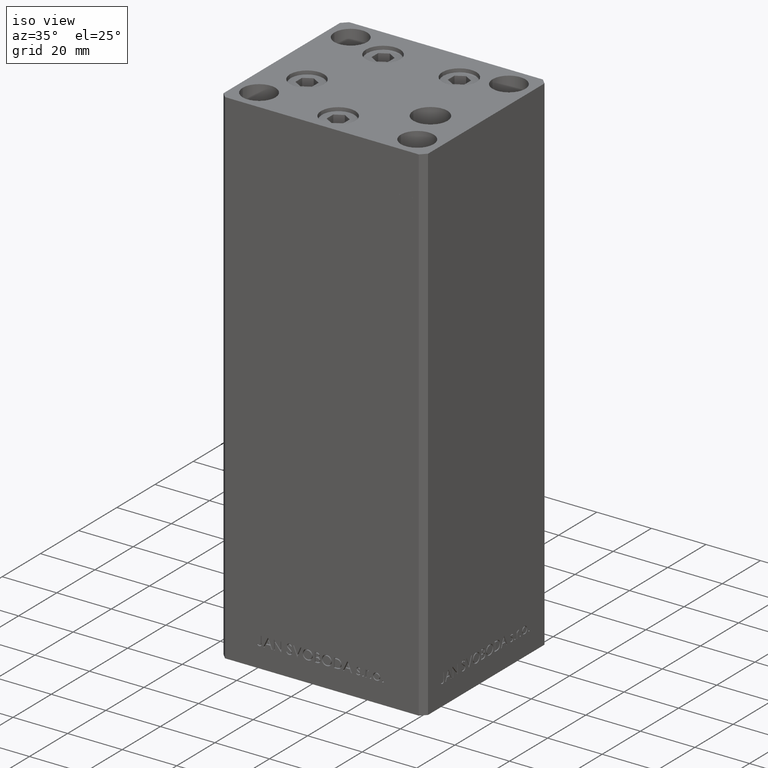
[diagram: clean part render]
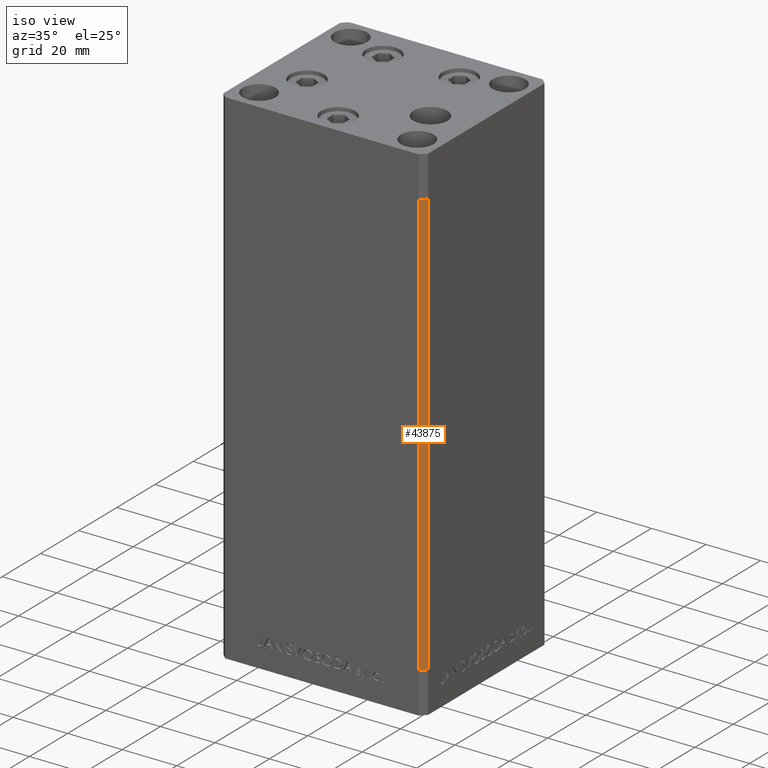
[diagram: same view with one face highlighted and labeled with its STEP entity id]
A machine part, iso view. The second image highlights one B-rep face of the part: STEP entity #43875.
In plain terms, the highlighted planar face has unit normal (0.7071, -0.7071, 0).
Its self-contained STEP definition (entity closure, byte-faithful):
#992 = VECTOR ( 'NONE', #23447, 1000.000000000000000 ) ;
#2834 = VECTOR ( 'NONE', #5915, 1000.000000000000114 ) ;
#2867 = VECTOR ( 'NONE', #22385, 1000.000000000000000 ) ;
#3907 = CARTESIAN_POINT ( 'NONE',  ( 37.49999999999999289, -30.50000000000000000, 156.0000000000000000 ) ) ;
#4114 = CARTESIAN_POINT ( 'NONE',  ( 37.49999999999999289, -30.50000000000000000, 0.000000000000000000 ) ) ;
#4712 = ORIENTED_EDGE ( 'NONE', *, *, #39701, .F. ) ;
#5915 = DIRECTION ( 'NONE',  ( -0.7071067811865474617, -0.7071067811865474617, 0.000000000000000000 ) ) ;
#7868 = LINE ( 'NONE', #8341, #992 ) ;
#7996 = CARTESIAN_POINT ( 'NONE',  ( 35.49999999999999289, -32.50000000000000000, 156.0000000000000000 ) ) ;
#8341 = CARTESIAN_POINT ( 'NONE',  ( 35.49999999999999289, -32.50000000000000000, 156.0000000000000000 ) ) ;
#9877 = LINE ( 'NONE', #24966, #2834 ) ;
#11792 = ORIENTED_EDGE ( 'NONE', *, *, #39300, .T. ) ;
#12270 = PLANE ( 'NONE',  #20228 ) ;
#12691 = CARTESIAN_POINT ( 'NONE',  ( 37.49999999999999289, -30.50000000000000000, 156.0000000000000000 ) ) ;
#15456 = ORIENTED_EDGE ( 'NONE', *, *, #38530, .F. ) ;
#16736 = VERTEX_POINT ( 'NONE', #32774 ) ;
#16975 = VERTEX_POINT ( 'NONE', #7996 ) ;
#19446 = VECTOR ( 'NONE', #47000, 1000.000000000000114 ) ;
#20228 = AXIS2_PLACEMENT_3D ( 'NONE', #3907, #48939, #41740 ) ;
#22385 = DIRECTION ( 'NONE',  ( -0.000000000000000000, -0.000000000000000000, -1.000000000000000000 ) ) ;
#23447 = DIRECTION ( 'NONE',  ( -0.000000000000000000, -0.000000000000000000, -1.000000000000000000 ) ) ;
#24764 = VERTEX_POINT ( 'NONE', #4114 ) ;
#24966 = CARTESIAN_POINT ( 'NONE',  ( 37.49999999999999289, -30.50000000000000000, 0.000000000000000000 ) ) ;
#30264 = EDGE_CURVE ( 'NONE', #16975, #16736, #7868, .T. ) ;
#31912 = CARTESIAN_POINT ( 'NONE',  ( 37.49999999999999289, -30.50000000000000000, 156.0000000000000000 ) ) ;
#32774 = CARTESIAN_POINT ( 'NONE',  ( 35.49999999999999289, -32.50000000000000000, 0.000000000000000000 ) ) ;
#35627 = LINE ( 'NONE', #31912, #19446 ) ;
#37004 = LINE ( 'NONE', #37712, #2867 ) ;
#37712 = CARTESIAN_POINT ( 'NONE',  ( 37.49999999999999289, -30.50000000000000000, 156.0000000000000000 ) ) ;
#37790 = FACE_OUTER_BOUND ( 'NONE', #48606, .T. ) ;
#38530 = EDGE_CURVE ( 'NONE', #24764, #16736, #9877, .T. ) ;
#39300 = EDGE_CURVE ( 'NONE', #40624, #16975, #35627, .T. ) ;
#39701 = EDGE_CURVE ( 'NONE', #40624, #24764, #37004, .T. ) ;
#40624 = VERTEX_POINT ( 'NONE', #12691 ) ;
#41740 = DIRECTION ( 'NONE',  ( 0.7071067811865474617, 0.7071067811865474617, 0.000000000000000000 ) ) ;
#43875 = ADVANCED_FACE ( 'NONE', ( #37790 ), #12270, .T. ) ;
#44519 = ORIENTED_EDGE ( 'NONE', *, *, #30264, .T. ) ;
#47000 = DIRECTION ( 'NONE',  ( -0.7071067811865474617, -0.7071067811865474617, 0.000000000000000000 ) ) ;
#48606 = EDGE_LOOP ( 'NONE', ( #15456, #4712, #11792, #44519 ) ) ;
#48939 = DIRECTION ( 'NONE',  ( 0.7071067811865475727, -0.7071067811865475727, 0.000000000000000000 ) ) ;